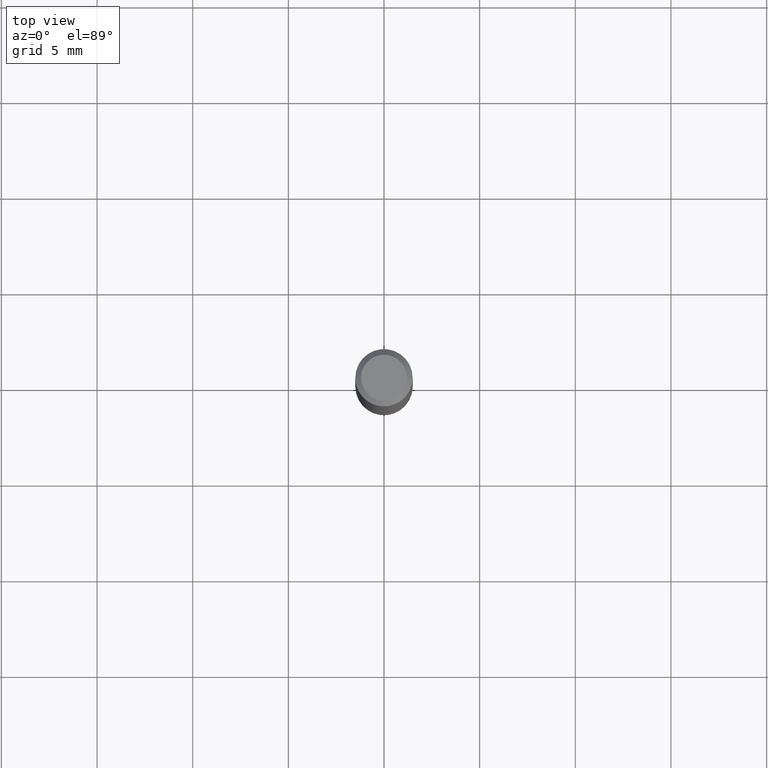
[diagram: clean part render]
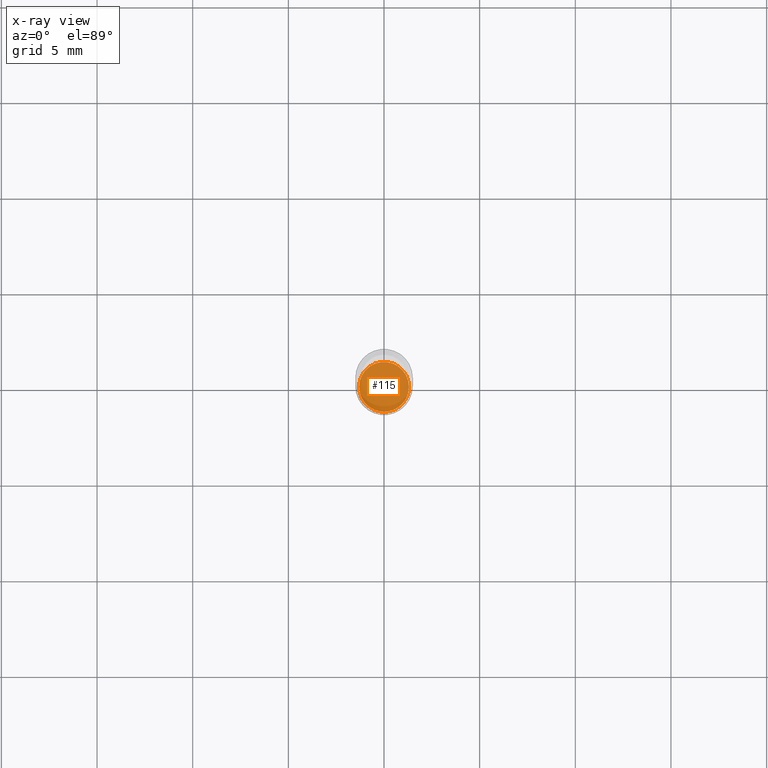
[diagram: x-ray — body ghosted, one internal face saturated and labeled with its STEP entity id]
A machine part, top view, then the same camera in x-ray: the body is ghosted and one INTERNAL B-rep face — a face not visible from any outside direction — is saturated and labeled: STEP entity #115.
In plain terms, the highlighted planar face has unit normal (-0, 0, 1).
Its self-contained STEP definition (entity closure, byte-faithful):
#35 = DIRECTION ( 'NONE',  ( 1.000000000000000000, -6.982962677686265922E-15, 4.876176775795935793E-29 ) ) ;
#37 = FACE_OUTER_BOUND ( 'NONE', #456, .T. ) ;
#42 = AXIS2_PLACEMENT_3D ( 'NONE', #304, #229, #35 ) ;
#82 = DIRECTION ( 'NONE',  ( 1.000000000000000000, -6.982962677686271444E-15, 0.000000000000000000 ) ) ;
#86 = EDGE_CURVE ( 'NONE', #93, #263, #121, .T. ) ;
#92 = DIRECTION ( 'NONE',  ( 1.000000000000000000, -6.982962677686271444E-15, 0.000000000000000000 ) ) ;
#93 = VERTEX_POINT ( 'NONE', #191 ) ;
#99 = CARTESIAN_POINT ( 'NONE',  ( 2.676565608369632355E-29, -3.821426325363822773E-15, -1.094500000000000028 ) ) ;
#115 = ADVANCED_FACE ( 'NONE', ( #37 ), #194, .F. ) ;
#121 = CIRCLE ( 'NONE', #393, 0.05124999999999999695 ) ;
#159 = DIRECTION ( 'NONE',  ( -2.445468806185136597E-29, 3.491481338843145583E-15, 1.000000000000000000 ) ) ;
#191 = CARTESIAN_POINT ( 'NONE',  ( -0.05124999999999999695, -3.454623946112660495E-15, -1.094500000000000028 ) ) ;
#194 = PLANE ( 'NONE',  #42 ) ;
#229 = DIRECTION ( 'NONE',  ( -2.438088387897960049E-29, 3.491481338843145188E-15, 1.000000000000000000 ) ) ;
#240 = EDGE_CURVE ( 'NONE', #263, #93, #242, .T. ) ;
#242 = CIRCLE ( 'NONE', #427, 0.05124999999999999695 ) ;
#249 = CARTESIAN_POINT ( 'NONE',  ( 0.05124999999999999695, -4.179303162595244416E-15, -1.094500000000000028 ) ) ;
#263 = VERTEX_POINT ( 'NONE', #249 ) ;
#283 = ORIENTED_EDGE ( 'NONE', *, *, #86, .F. ) ;
#304 = CARTESIAN_POINT ( 'NONE',  ( 6.395791030270134867E-30, -6.738506939086296803E-15, -1.094500000000000028 ) ) ;
#318 = DIRECTION ( 'NONE',  ( -2.445468806185136597E-29, 3.491481338843145583E-15, 1.000000000000000000 ) ) ;
#357 = ORIENTED_EDGE ( 'NONE', *, *, #240, .F. ) ;
#393 = AXIS2_PLACEMENT_3D ( 'NONE', #447, #159, #82 ) ;
#427 = AXIS2_PLACEMENT_3D ( 'NONE', #99, #318, #92 ) ;
#447 = CARTESIAN_POINT ( 'NONE',  ( 2.676565608369632355E-29, -3.821426325363822773E-15, -1.094500000000000028 ) ) ;
#456 = EDGE_LOOP ( 'NONE', ( #357, #283 ) ) ;